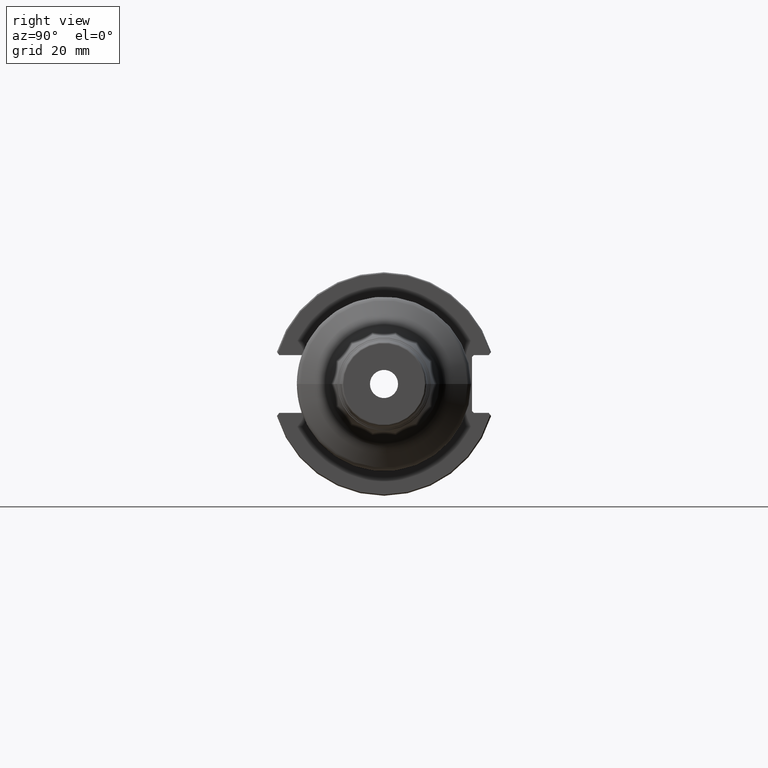
[diagram: clean part render]
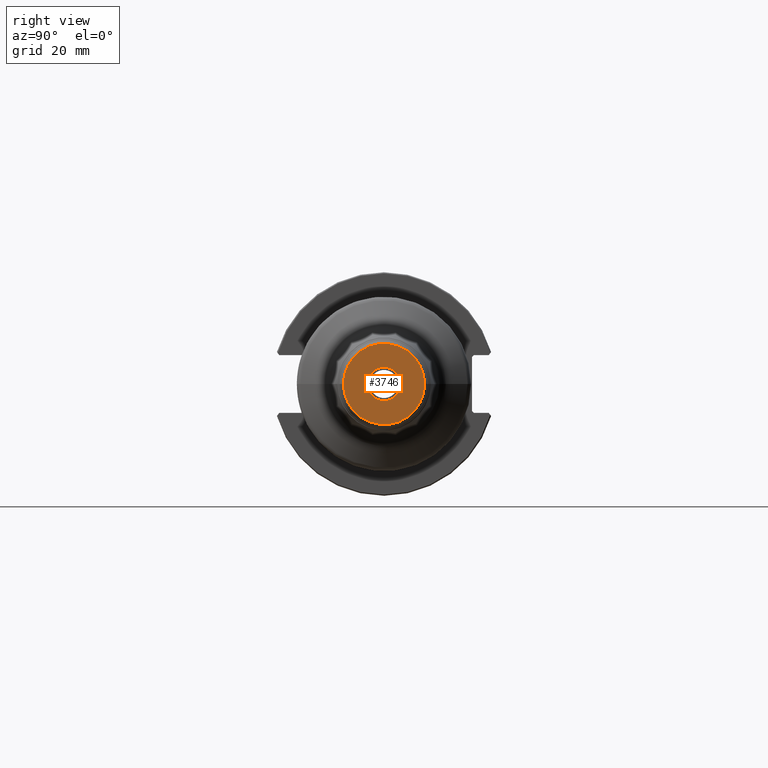
[diagram: same view with one face highlighted and labeled with its STEP entity id]
A machine part, right view. The second image highlights one B-rep face of the part: STEP entity #3746.
In plain terms, the highlighted planar face has unit normal (1, 0, 0).
Its self-contained STEP definition (entity closure, byte-faithful):
#1110=CARTESIAN_POINT('',(1.2E2,0.E0,0.E0));
#1111=DIRECTION('',(-1.E0,0.E0,0.E0));
#1112=DIRECTION('',(0.E0,1.E0,0.E0));
#1113=AXIS2_PLACEMENT_3D('',#1110,#1111,#1112);
#1115=CARTESIAN_POINT('',(1.2E2,0.E0,0.E0));
#1116=DIRECTION('',(-1.E0,0.E0,0.E0));
#1117=DIRECTION('',(0.E0,-1.E0,0.E0));
#1118=AXIS2_PLACEMENT_3D('',#1115,#1116,#1117);
#1120=CARTESIAN_POINT('',(1.2E2,0.E0,0.E0));
#1121=DIRECTION('',(1.E0,0.E0,0.E0));
#1122=DIRECTION('',(0.E0,1.E0,0.E0));
#1123=AXIS2_PLACEMENT_3D('',#1120,#1121,#1122);
#1125=CARTESIAN_POINT('',(1.2E2,0.E0,0.E0));
#1126=DIRECTION('',(1.E0,0.E0,0.E0));
#1127=DIRECTION('',(0.E0,-1.E0,0.E0));
#1128=AXIS2_PLACEMENT_3D('',#1125,#1126,#1127);
#2353=CARTESIAN_POINT('',(1.2E2,4.7625E0,0.E0));
#2354=CARTESIAN_POINT('',(1.2E2,-4.7625E0,0.E0));
#2355=VERTEX_POINT('',#2353);
#2356=VERTEX_POINT('',#2354);
#2379=CARTESIAN_POINT('',(1.2E2,1.152552273449E1,0.E0));
#2380=CARTESIAN_POINT('',(1.2E2,-1.152552273449E1,0.E0));
#2381=VERTEX_POINT('',#2379);
#2382=VERTEX_POINT('',#2380);
#3731=CARTESIAN_POINT('',(1.2E2,0.E0,0.E0));
#3732=DIRECTION('',(1.E0,0.E0,0.E0));
#3733=DIRECTION('',(0.E0,-1.E0,0.E0));
#3734=AXIS2_PLACEMENT_3D('',#3731,#3732,#3733);
#3735=PLANE('',#3734);
#3736=ORIENTED_EDGE('',*,*,#3698,.T.);
#3737=ORIENTED_EDGE('',*,*,#3713,.T.);
#3738=EDGE_LOOP('',(#3736,#3737));
#3739=FACE_OUTER_BOUND('',#3738,.F.);
#3741=ORIENTED_EDGE('',*,*,#3740,.T.);
#3743=ORIENTED_EDGE('',*,*,#3742,.T.);
#3744=EDGE_LOOP('',(#3741,#3743));
#3745=FACE_BOUND('',#3744,.F.);
#3746=ADVANCED_FACE('',(#3739,#3745),#3735,.T.);
#1114=CIRCLE('',#1113,1.152552273449E1);
#1119=CIRCLE('',#1118,1.152552273449E1);
#1124=CIRCLE('',#1123,4.7625E0);
#1129=CIRCLE('',#1128,4.7625E0);
#3698=EDGE_CURVE('',#2381,#2382,#1114,.T.);
#3713=EDGE_CURVE('',#2382,#2381,#1119,.T.);
#3740=EDGE_CURVE('',#2355,#2356,#1124,.T.);
#3742=EDGE_CURVE('',#2356,#2355,#1129,.T.);